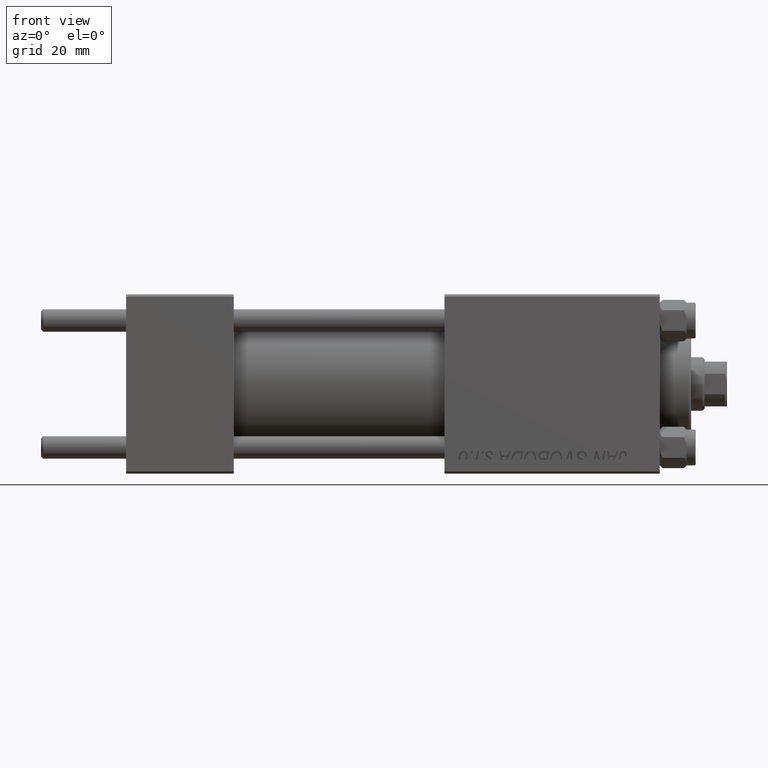
[diagram: clean part render]
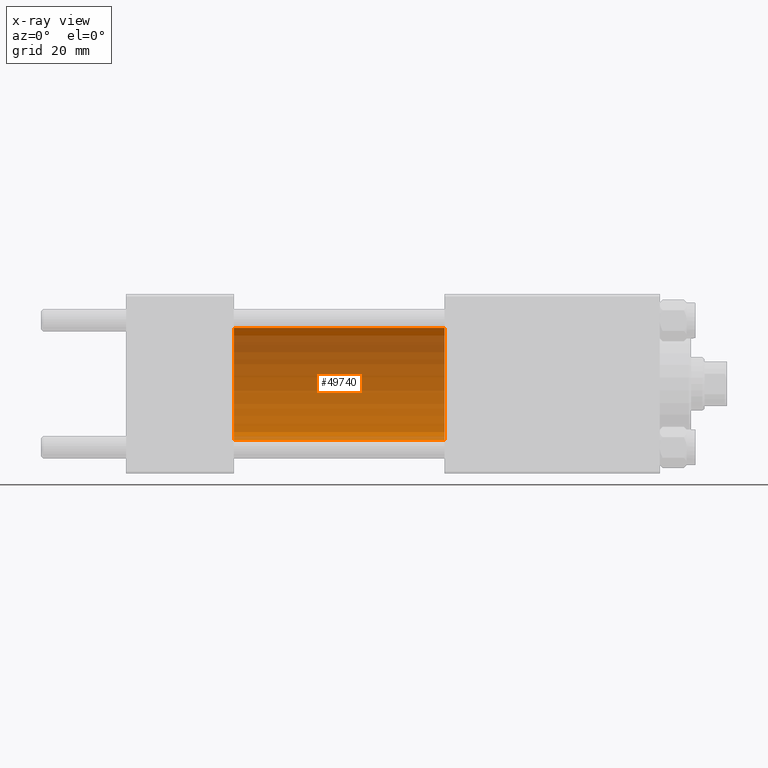
[diagram: x-ray — body ghosted, one internal face saturated and labeled with its STEP entity id]
A machine part, front view, then the same camera in x-ray: the body is ghosted and one INTERNAL B-rep face — a face not visible from any outside direction — is saturated and labeled: STEP entity #49740.
In plain terms, the highlighted cylindrical surface (partial cylindrical patch) has radius 12.5 mm, axis along (-1, -0, -0).
Its self-contained STEP definition (entity closure, byte-faithful):
#145 = CARTESIAN_POINT ( 'NONE',  ( 71.00000000000001421, 1.530808498934191127E-15, -12.49999999999999645 ) ) ;
#1370 = VECTOR ( 'NONE', #13346, 1000.000000000000000 ) ;
#3048 = DIRECTION ( 'NONE',  ( 0.000000000000000000, 0.000000000000000000, -1.000000000000000000 ) ) ;
#3111 = VERTEX_POINT ( 'NONE', #37352 ) ;
#3802 = CARTESIAN_POINT ( 'NONE',  ( 24.00000000000000000, 0.000000000000000000, 12.49999999999999645 ) ) ;
#5596 = DIRECTION ( 'NONE',  ( 1.000000000000000000, 0.000000000000000000, 0.000000000000000000 ) ) ;
#5853 = DIRECTION ( 'NONE',  ( 0.000000000000000000, 0.000000000000000000, -1.000000000000000000 ) ) ;
#5996 = ORIENTED_EDGE ( 'NONE', *, *, #38508, .F. ) ;
#6604 = DIRECTION ( 'NONE',  ( 0.000000000000000000, 0.000000000000000000, 1.000000000000000000 ) ) ;
#9647 = CARTESIAN_POINT ( 'NONE',  ( 71.00000000000001421, 0.000000000000000000, 12.49999999999999645 ) ) ;
#10326 = EDGE_CURVE ( 'NONE', #31307, #34964, #17755, .T. ) ;
#13346 = DIRECTION ( 'NONE',  ( -1.000000000000000000, -0.000000000000000000, -0.000000000000000000 ) ) ;
#13607 = CARTESIAN_POINT ( 'NONE',  ( 71.00000000000001421, 1.530808498934191127E-15, -12.49999999999999645 ) ) ;
#14143 = CARTESIAN_POINT ( 'NONE',  ( 71.00000000000001421, 0.000000000000000000, 0.000000000000000000 ) ) ;
#16420 = CARTESIAN_POINT ( 'NONE',  ( 24.00000000000000000, 0.000000000000000000, 0.000000000000000000 ) ) ;
#16944 = EDGE_CURVE ( 'NONE', #3111, #34964, #28787, .T. ) ;
#17142 = EDGE_CURVE ( 'NONE', #29842, #3111, #45327, .T. ) ;
#17755 = CIRCLE ( 'NONE', #24176, 12.49999999999999645 ) ;
#18416 = DIRECTION ( 'NONE',  ( -1.000000000000000000, -0.000000000000000000, -0.000000000000000000 ) ) ;
#21692 = CYLINDRICAL_SURFACE ( 'NONE', #25001, 12.49999999999999645 ) ;
#23250 = ORIENTED_EDGE ( 'NONE', *, *, #16944, .T. ) ;
#24176 = AXIS2_PLACEMENT_3D ( 'NONE', #16420, #5596, #5853 ) ;
#24384 = VECTOR ( 'NONE', #29042, 1000.000000000000000 ) ;
#25001 = AXIS2_PLACEMENT_3D ( 'NONE', #14143, #18416, #6604 ) ;
#25577 = ORIENTED_EDGE ( 'NONE', *, *, #17142, .T. ) ;
#27901 = ORIENTED_EDGE ( 'NONE', *, *, #10326, .F. ) ;
#28787 = LINE ( 'NONE', #9647, #24384 ) ;
#29042 = DIRECTION ( 'NONE',  ( -1.000000000000000000, -0.000000000000000000, -0.000000000000000000 ) ) ;
#29842 = VERTEX_POINT ( 'NONE', #145 ) ;
#31307 = VERTEX_POINT ( 'NONE', #44582 ) ;
#33287 = FACE_OUTER_BOUND ( 'NONE', #40103, .T. ) ;
#33503 = CARTESIAN_POINT ( 'NONE',  ( 71.00000000000001421, 0.000000000000000000, 0.000000000000000000 ) ) ;
#34291 = LINE ( 'NONE', #13607, #1370 ) ;
#34964 = VERTEX_POINT ( 'NONE', #3802 ) ;
#37352 = CARTESIAN_POINT ( 'NONE',  ( 71.00000000000001421, 0.000000000000000000, 12.49999999999999645 ) ) ;
#38508 = EDGE_CURVE ( 'NONE', #29842, #31307, #34291, .T. ) ;
#40103 = EDGE_LOOP ( 'NONE', ( #5996, #25577, #23250, #27901 ) ) ;
#42093 = AXIS2_PLACEMENT_3D ( 'NONE', #33503, #45100, #3048 ) ;
#44582 = CARTESIAN_POINT ( 'NONE',  ( 24.00000000000000000, 1.530808498934191127E-15, -12.49999999999999645 ) ) ;
#45100 = DIRECTION ( 'NONE',  ( 1.000000000000000000, 0.000000000000000000, 0.000000000000000000 ) ) ;
#45327 = CIRCLE ( 'NONE', #42093, 12.49999999999999645 ) ;
#49740 = ADVANCED_FACE ( 'NONE', ( #33287 ), #21692, .F. ) ;